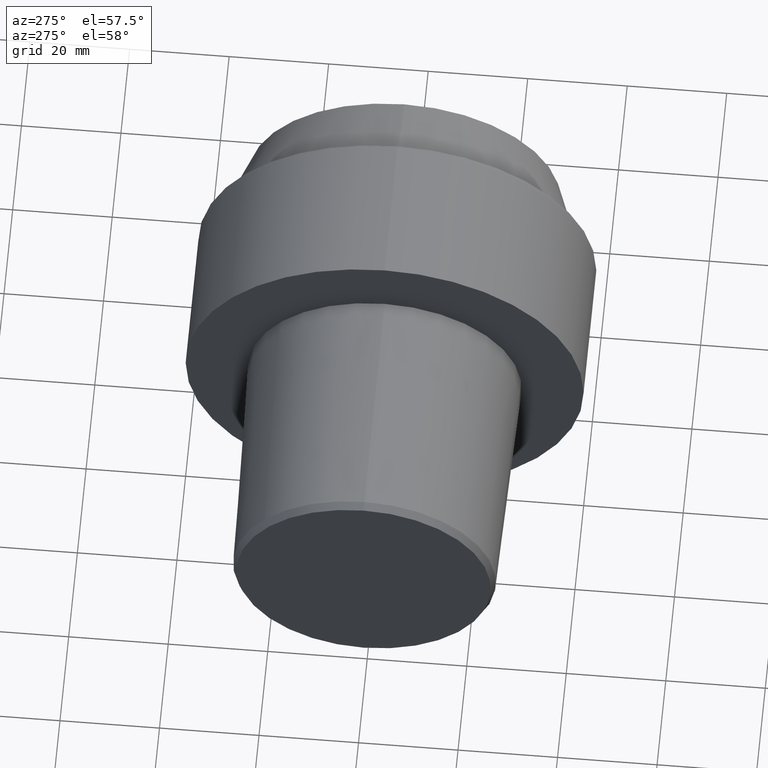
[diagram: clean part render]
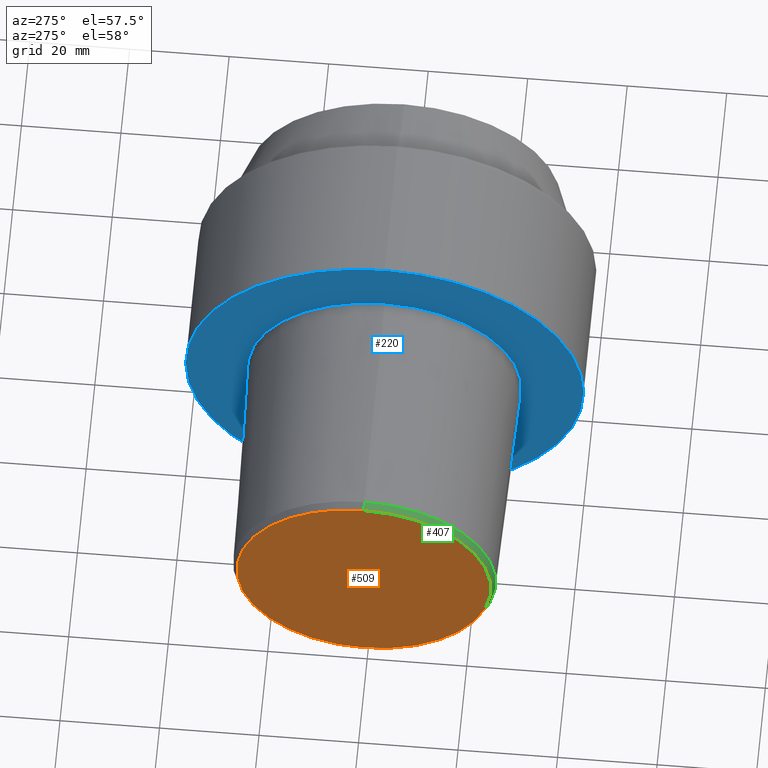
[diagram: same view with three faces highlighted in distinct colors, each labeled with its STEP entity id]
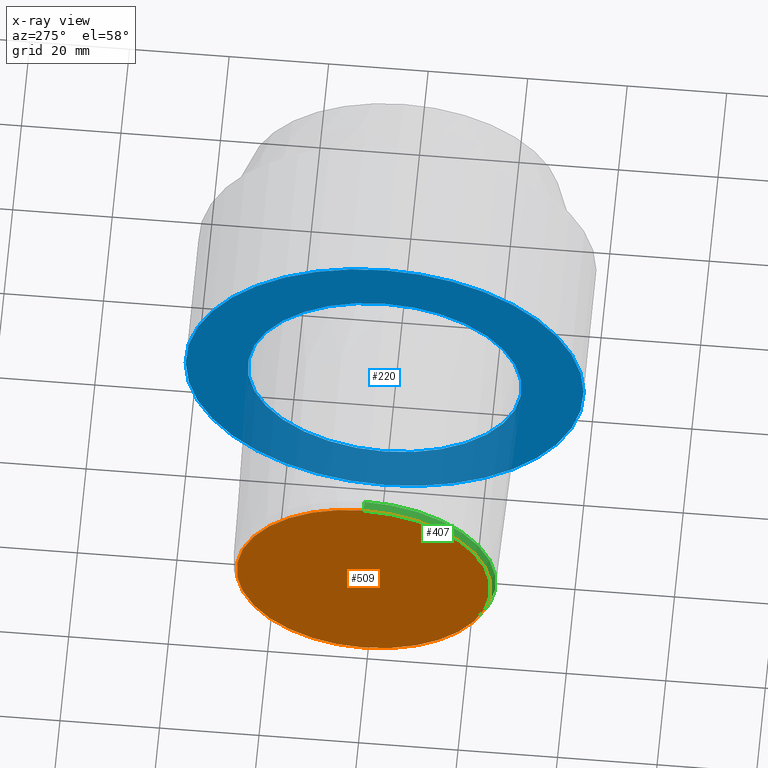
[diagram: x-ray of the same camera — body ghosted, the three highlighted faces saturated]
A machine part, auxiliary view with three faces highlighted in distinct colors.
The next image is the same camera in x-ray (body ghosted, the three faces saturated) — at least one of them is partly hidden behind the body in this view.
Their STEP definitions:

[orange] entity #509 — the highlighted planar face has unit normal (1, 0, 0).
#2 = VERTEX_POINT ( 'NONE', #322 ) ;
#62 = ORIENTED_EDGE ( 'NONE', *, *, #92, .T. ) ;
#74 = EDGE_CURVE ( 'NONE', #2, #382, #432, .T. ) ;
#77 = CARTESIAN_POINT ( 'NONE',  ( -47.99999995507708661, 0.000000000000000000, 0.000000000000000000 ) ) ;
#92 = EDGE_CURVE ( 'NONE', #382, #2, #257, .T. ) ;
#106 = DIRECTION ( 'NONE',  ( 0.000000000000000000, 1.000000000000000000, 0.000000000000000000 ) ) ;
#121 = DIRECTION ( 'NONE',  ( -1.000000000000000000, 0.000000000000000000, 0.000000000000000000 ) ) ;
#124 = AXIS2_PLACEMENT_3D ( 'NONE', #77, #406, #150 ) ;
#134 = ORIENTED_EDGE ( 'NONE', *, *, #74, .T. ) ;
#144 = DIRECTION ( 'NONE',  ( 1.000000000000000000, 0.000000000000000000, 0.000000000000000000 ) ) ;
#150 = DIRECTION ( 'NONE',  ( 0.000000000000000000, 0.000000000000000000, 1.000000000000000000 ) ) ;
#158 = DIRECTION ( 'NONE',  ( 0.000000000000000000, 0.000000000000000000, 1.000000000000000000 ) ) ;
#195 = CARTESIAN_POINT ( 'NONE',  ( -47.99999995507708661, 25.54657487093501445, 0.000000000000000000 ) ) ;
#206 = CARTESIAN_POINT ( 'NONE',  ( -47.99999995507708661, 0.000000000000000000, 0.000000000000000000 ) ) ;
#219 = EDGE_LOOP ( 'NONE', ( #134, #62 ) ) ;
#257 = CIRCLE ( 'NONE', #124, 25.54657487093501445 ) ;
#320 = CARTESIAN_POINT ( 'NONE',  ( -47.99999995507708661, 3.181581876606904120E-15, 25.54657487093501445 ) ) ;
#322 = CARTESIAN_POINT ( 'NONE',  ( -47.99999995507708661, 0.000000000000000000, -25.54657487093501445 ) ) ;
#351 = FACE_OUTER_BOUND ( 'NONE', #219, .T. ) ;
#371 = AXIS2_PLACEMENT_3D ( 'NONE', #206, #121, #158 ) ;
#382 = VERTEX_POINT ( 'NONE', #320 ) ;
#406 = DIRECTION ( 'NONE',  ( -1.000000000000000000, 0.000000000000000000, 0.000000000000000000 ) ) ;
#428 = AXIS2_PLACEMENT_3D ( 'NONE', #195, #144, #106 ) ;
#432 = CIRCLE ( 'NONE', #371, 25.54657487093501445 ) ;
#509 = ADVANCED_FACE ( 'NONE', ( #351 ), #520, .F. ) ;
#520 = PLANE ( 'NONE',  #428 ) ;

[blue] entity #220 — the highlighted planar face has unit normal (1, 0, 0).
#9 = AXIS2_PLACEMENT_3D ( 'NONE', #52, #56, #182 ) ;
#28 = ORIENTED_EDGE ( 'NONE', *, *, #448, .F. ) ;
#29 = DIRECTION ( 'NONE',  ( -1.000000000000000000, 0.000000000000000000, 0.000000000000000000 ) ) ;
#42 = CARTESIAN_POINT ( 'NONE',  ( 2.691416640612785863E-09, 0.000000000000000000, 39.99249996386929951 ) ) ;
#52 = CARTESIAN_POINT ( 'NONE',  ( 2.691419645645579073E-09, 39.99249996386929951, 0.000000000000000000 ) ) ;
#53 = EDGE_LOOP ( 'NONE', ( #366, #28 ) ) ;
#56 = DIRECTION ( 'NONE',  ( 1.000000000000000000, 0.000000000000000000, 0.000000000000000000 ) ) ;
#76 = DIRECTION ( 'NONE',  ( 0.000000000000000000, 0.000000000000000000, 1.000000000000000000 ) ) ;
#80 = CARTESIAN_POINT ( 'NONE',  ( 2.691416640612785863E-09, 0.000000000000000000, 0.000000000000000000 ) ) ;
#90 = VERTEX_POINT ( 'NONE', #42 ) ;
#95 = FACE_OUTER_BOUND ( 'NONE', #136, .T. ) ;
#105 = DIRECTION ( 'NONE',  ( -1.000000000000000000, 0.000000000000000000, 0.000000000000000000 ) ) ;
#136 = EDGE_LOOP ( 'NONE', ( #304, #384 ) ) ;
#182 = DIRECTION ( 'NONE',  ( 0.000000000000000000, 1.000000000000000000, 0.000000000000000000 ) ) ;
#202 = CARTESIAN_POINT ( 'NONE',  ( 2.691416640612785863E-09, 0.000000000000000000, 27.52650806658465399 ) ) ;
#220 = ADVANCED_FACE ( 'NONE', ( #298, #95 ), #479, .F. ) ;
#284 = CIRCLE ( 'NONE', #514, 39.99249996386929951 ) ;
#287 = EDGE_CURVE ( 'NONE', #349, #347, #299, .T. ) ;
#298 = FACE_BOUND ( 'NONE', #53, .T. ) ;
#299 = CIRCLE ( 'NONE', #379, 27.52650806658465399 ) ;
#304 = ORIENTED_EDGE ( 'NONE', *, *, #321, .T. ) ;
#317 = CARTESIAN_POINT ( 'NONE',  ( 2.691416640612785863E-09, 3.371024999544667893E-15, -27.52650806658465399 ) ) ;
#321 = EDGE_CURVE ( 'NONE', #90, #385, #284, .T. ) ;
#347 = VERTEX_POINT ( 'NONE', #317 ) ;
#349 = VERTEX_POINT ( 'NONE', #202 ) ;
#352 = AXIS2_PLACEMENT_3D ( 'NONE', #408, #484, #439 ) ;
#355 = DIRECTION ( 'NONE',  ( -1.000000000000000000, 0.000000000000000000, 0.000000000000000000 ) ) ;
#366 = ORIENTED_EDGE ( 'NONE', *, *, #287, .F. ) ;
#367 = CIRCLE ( 'NONE', #399, 27.52650806658465399 ) ;
#379 = AXIS2_PLACEMENT_3D ( 'NONE', #405, #29, #76 ) ;
#384 = ORIENTED_EDGE ( 'NONE', *, *, #460, .T. ) ;
#385 = VERTEX_POINT ( 'NONE', #446 ) ;
#399 = AXIS2_PLACEMENT_3D ( 'NONE', #517, #355, #450 ) ;
#405 = CARTESIAN_POINT ( 'NONE',  ( 2.691416640612785863E-09, 0.000000000000000000, 0.000000000000000000 ) ) ;
#408 = CARTESIAN_POINT ( 'NONE',  ( 2.691416640612785863E-09, 0.000000000000000000, 0.000000000000000000 ) ) ;
#439 = DIRECTION ( 'NONE',  ( 0.000000000000000000, 0.000000000000000000, 1.000000000000000000 ) ) ;
#443 = DIRECTION ( 'NONE',  ( 0.000000000000000000, 0.000000000000000000, 1.000000000000000000 ) ) ;
#446 = CARTESIAN_POINT ( 'NONE',  ( 2.691416640612785863E-09, 4.897668707065322260E-15, -39.99249996386929951 ) ) ;
#448 = EDGE_CURVE ( 'NONE', #347, #349, #367, .T. ) ;
#450 = DIRECTION ( 'NONE',  ( 0.000000000000000000, 0.000000000000000000, 1.000000000000000000 ) ) ;
#460 = EDGE_CURVE ( 'NONE', #385, #90, #506, .T. ) ;
#479 = PLANE ( 'NONE',  #9 ) ;
#484 = DIRECTION ( 'NONE',  ( -1.000000000000000000, 0.000000000000000000, 0.000000000000000000 ) ) ;
#506 = CIRCLE ( 'NONE', #352, 39.99249996386929951 ) ;
#514 = AXIS2_PLACEMENT_3D ( 'NONE', #80, #105, #443 ) ;
#517 = CARTESIAN_POINT ( 'NONE',  ( 2.691416640612785863E-09, 0.000000000000000000, 0.000000000000000000 ) ) ;

[green] entity #407 — the highlighted conical surface has half-angle 30 deg.
#2 = VERTEX_POINT ( 'NONE', #322 ) ;
#8 = VERTEX_POINT ( 'NONE', #199 ) ;
#11 = EDGE_CURVE ( 'NONE', #382, #297, #85, .T. ) ;
#32 = CARTESIAN_POINT ( 'NONE',  ( -46.49999994987858543, 0.000000000000000000, 0.000000000000000000 ) ) ;
#47 = EDGE_CURVE ( 'NONE', #8, #297, #175, .T. ) ;
#72 = CARTESIAN_POINT ( 'NONE',  ( -46.49999994987858543, 0.000000000000000000, 0.000000000000000000 ) ) ;
#74 = EDGE_CURVE ( 'NONE', #2, #382, #432, .T. ) ;
#81 = DIRECTION ( 'NONE',  ( -1.000000000000000000, 0.000000000000000000, 0.000000000000000000 ) ) ;
#85 = LINE ( 'NONE', #232, #215 ) ;
#91 = CONICAL_SURFACE ( 'NONE', #173, 26.41260027772084129, 0.5235987755982992597 ) ;
#117 = DIRECTION ( 'NONE',  ( 1.000000000000000000, 0.000000000000000000, 0.000000000000000000 ) ) ;
#121 = DIRECTION ( 'NONE',  ( -1.000000000000000000, 0.000000000000000000, 0.000000000000000000 ) ) ;
#158 = DIRECTION ( 'NONE',  ( 0.000000000000000000, 0.000000000000000000, 1.000000000000000000 ) ) ;
#173 = AXIS2_PLACEMENT_3D ( 'NONE', #72, #117, #233 ) ;
#175 = CIRCLE ( 'NONE', #357, 26.41260027772084129 ) ;
#199 = CARTESIAN_POINT ( 'NONE',  ( -46.49999994987858543, 0.000000000000000000, -26.41260027772084129 ) ) ;
#206 = CARTESIAN_POINT ( 'NONE',  ( -47.99999995507708661, 0.000000000000000000, 0.000000000000000000 ) ) ;
#215 = VECTOR ( 'NONE', #268, 1000.000000000000000 ) ;
#227 = LINE ( 'NONE', #411, #437 ) ;
#232 = CARTESIAN_POINT ( 'NONE',  ( -46.49999994987858543, 3.234610638726928974E-15, 26.41260027772084129 ) ) ;
#233 = DIRECTION ( 'NONE',  ( 0.000000000000000000, 0.000000000000000000, -1.000000000000000000 ) ) ;
#261 = ORIENTED_EDGE ( 'NONE', *, *, #74, .F. ) ;
#267 = EDGE_CURVE ( 'NONE', #2, #8, #227, .T. ) ;
#268 = DIRECTION ( 'NONE',  ( 0.8660254037844387076, 6.123233995736768501E-17, 0.4999999999999998890 ) ) ;
#279 = CARTESIAN_POINT ( 'NONE',  ( -46.49999994987858543, 3.302817819135798828E-15, 26.41260027772084129 ) ) ;
#297 = VERTEX_POINT ( 'NONE', #279 ) ;
#320 = CARTESIAN_POINT ( 'NONE',  ( -47.99999995507708661, 3.181581876606904120E-15, 25.54657487093501445 ) ) ;
#322 = CARTESIAN_POINT ( 'NONE',  ( -47.99999995507708661, 0.000000000000000000, -25.54657487093501445 ) ) ;
#357 = AXIS2_PLACEMENT_3D ( 'NONE', #32, #81, #455 ) ;
#371 = AXIS2_PLACEMENT_3D ( 'NONE', #206, #121, #158 ) ;
#382 = VERTEX_POINT ( 'NONE', #320 ) ;
#407 = ADVANCED_FACE ( 'NONE', ( #451 ), #91, .T. ) ;
#411 = CARTESIAN_POINT ( 'NONE',  ( -46.49999994987858543, 0.000000000000000000, -26.41260027772084129 ) ) ;
#432 = CIRCLE ( 'NONE', #371, 25.54657487093501445 ) ;
#434 = ORIENTED_EDGE ( 'NONE', *, *, #47, .T. ) ;
#437 = VECTOR ( 'NONE', #457, 1000.000000000000000 ) ;
#442 = EDGE_LOOP ( 'NONE', ( #511, #261, #473, #434 ) ) ;
#451 = FACE_OUTER_BOUND ( 'NONE', #442, .T. ) ;
#455 = DIRECTION ( 'NONE',  ( 0.000000000000000000, 0.000000000000000000, 1.000000000000000000 ) ) ;
#457 = DIRECTION ( 'NONE',  ( 0.8660254037844387076, 0.000000000000000000, -0.4999999999999998890 ) ) ;
#473 = ORIENTED_EDGE ( 'NONE', *, *, #267, .T. ) ;
#511 = ORIENTED_EDGE ( 'NONE', *, *, #11, .F. ) ;